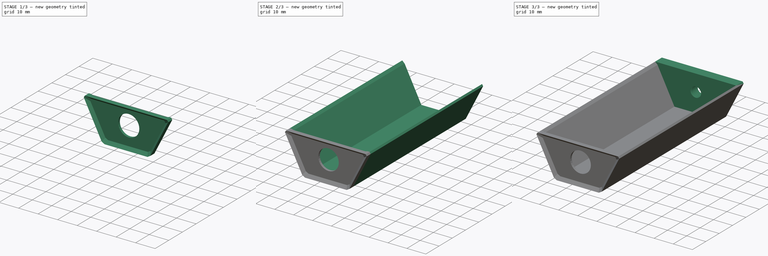
[diagram: build sequence overview — one tinted view per stage of 3, left to right]
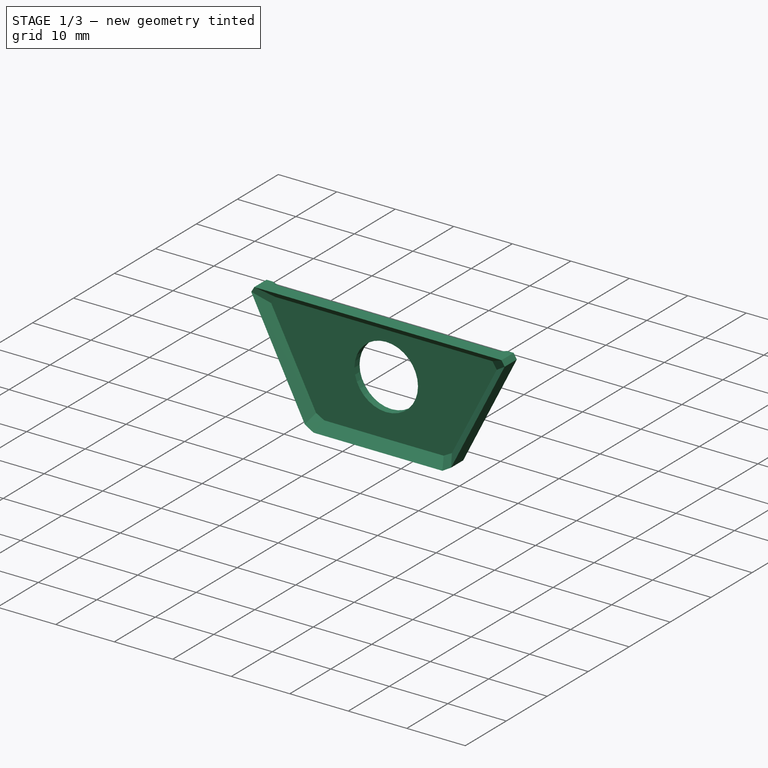
[diagram: stage 1 of 3 — iso view after this stage's code; geometry added in this stage tinted green]
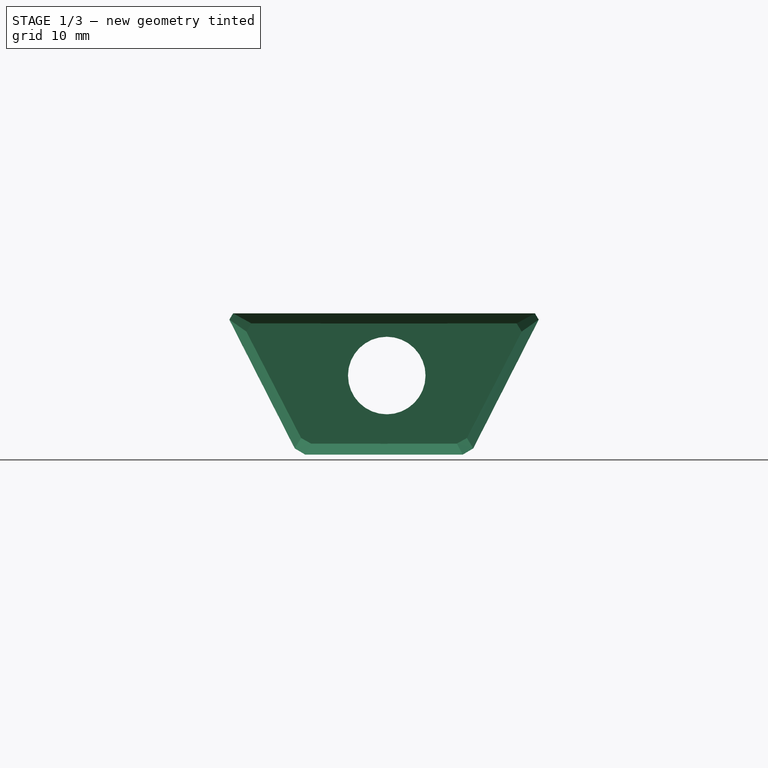
[diagram: stage 1 of 3 — front view after this stage's code; geometry added in this stage tinted green]
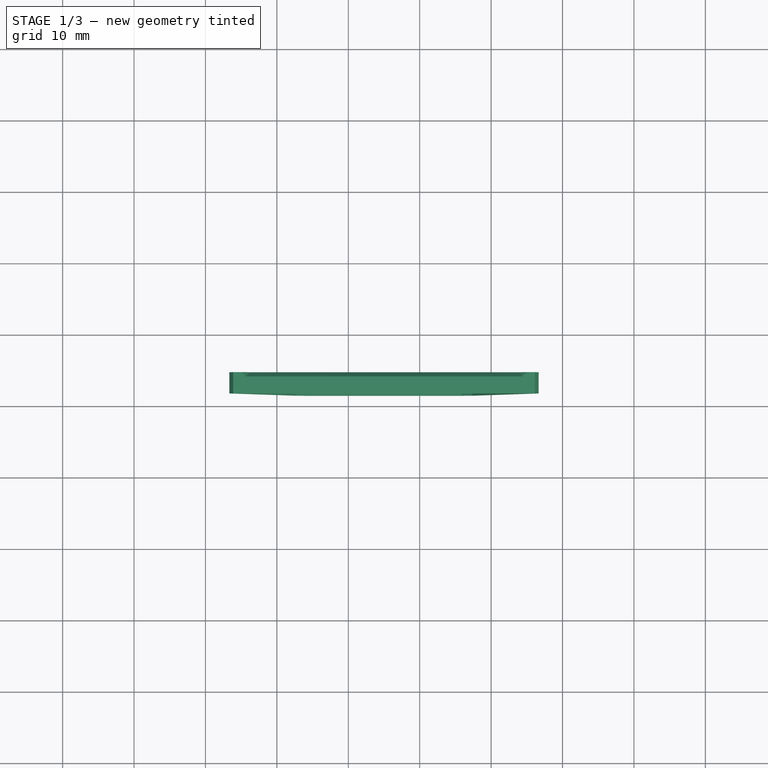
[diagram: stage 1 of 3 — top view after this stage's code; geometry added in this stage tinted green]
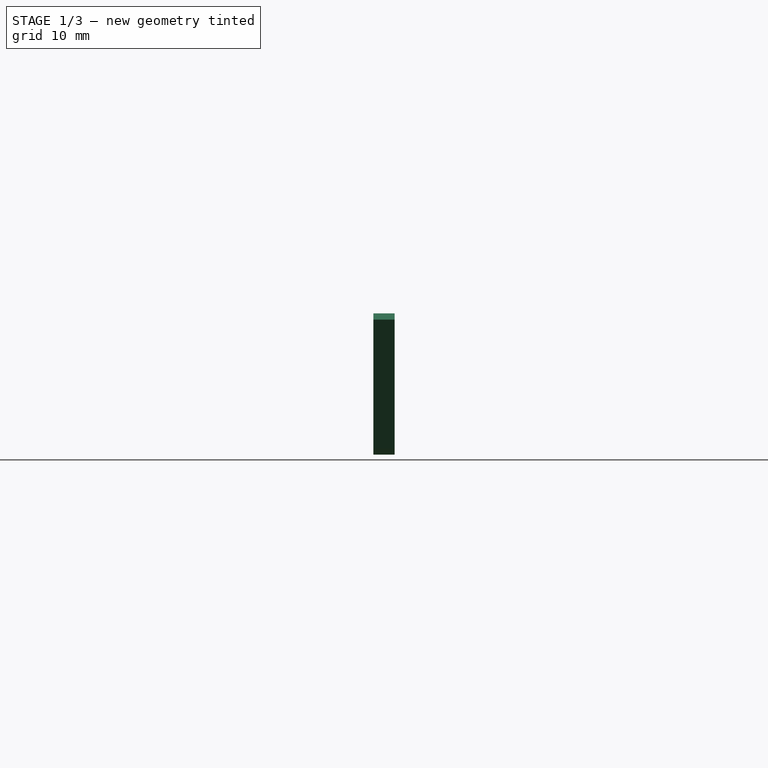
[diagram: stage 1 of 3 — right view after this stage's code; geometry added in this stage tinted green]
FCSTD DOCUMENT  (FreeCAD 1.1R39673 (Git))
Label: tall leg
License: All rights reserved
LicenseURL: https://en.wikipedia.org/wiki/All_rights_reserved
objects: Sketcher::SketchObject×3, PartDesign::Pad×2, Part::Feature×1, App::Point×1, PartDesign::FeatureBase×1, PartDesign::Pocket×1, PartDesign::Hole×1, PartDesign::Body×1
note: 22 computed .brp shape members not serialized (recipe doc carries the construction recipe); baked Part::Feature solids carry a one-line shape summary decoded from their .brp

FEATURE [Part::Feature] LegFixed_x004_solid  label="long leg"
  shape: bbox 43.32 x 82.01 x 19.79 mm, 2493 faces (baked)
FEATURE [App::Point] Origin001
  Role = Origin
FEATURE [PartDesign::FeatureBase] BaseFeature
  BaseFeature = -> LegFixed_x004_solid
  Suppressed = false
FEATURE [Sketcher::SketchObject] Sketch
  ArcFitTolerance = 1e-06
  AttachmentSupport = -> [BaseFeature]
  ExternalTypes = [0]
  FullyConstrained = false
  MakeInternals = false
  MapMode = 5
  Placement = pos=(0,74.4712,0) rot=(0,0.707107,0.707107;3.14159rad)
  sketch-geometry (4):
    g0: LineSegment StartX=-143.991 StartY=27.5216 StartZ=0 EndX=-143.991 EndY=-8.56043 EndZ=0
    g1: LineSegment StartX=-143.991 StartY=-8.56043 StartZ=0 EndX=-82.0082 EndY=-8.56043 EndZ=0
    g2: LineSegment StartX=-82.0082 StartY=-8.56043 StartZ=0 EndX=-82.0082 EndY=27.5216 EndZ=0
    g3: LineSegment StartX=-82.0082 StartY=27.5216 StartZ=0 EndX=-143.991 EndY=27.5216 EndZ=0
  constraints (8):
    c: Coincident(g0,g1)
    c: Coincident(g1,g2)
    c: Coincident(g2,g3)
    c: Coincident(g3,g0)
    c: Vertical(g0)
    c: Vertical(g2)
    c: Horizontal(g1)
    c: Horizontal(g3)
FEATURE [PartDesign::Pocket] Pocket
  BaseFeature = -> BaseFeature
  Direction = (0,-1,0)
  Length = 5
  Length2 = 5
  Profile = -> Sketch
  ReferenceAxis = -> Sketch [N_Axis]
  Refine = true
  Reversed = true
  Suppressed = false
  Type = 1
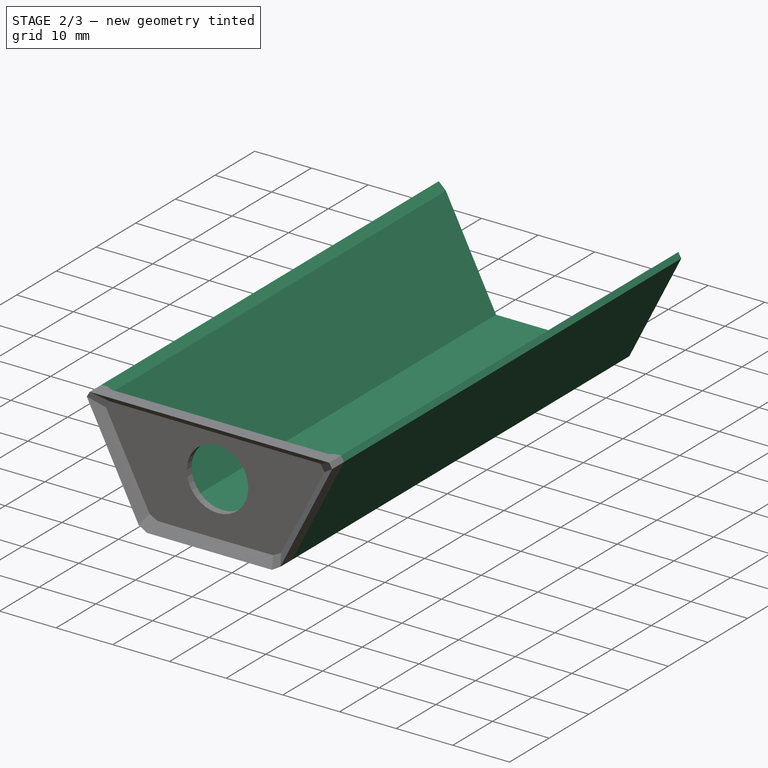
[diagram: stage 2 of 3 — iso view after this stage's code; geometry added in this stage tinted green]
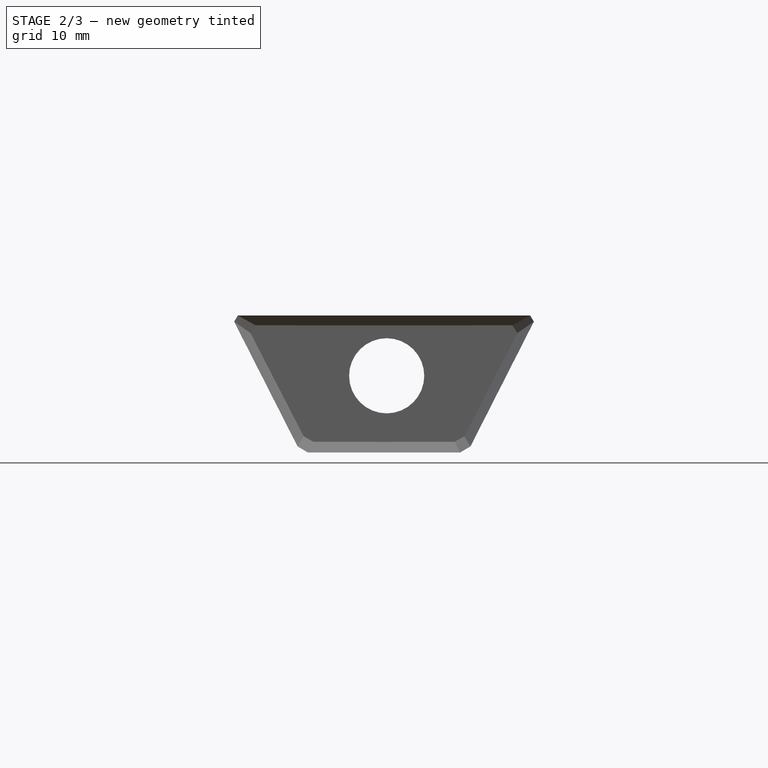
[diagram: stage 2 of 3 — front view after this stage's code; geometry added in this stage tinted green]
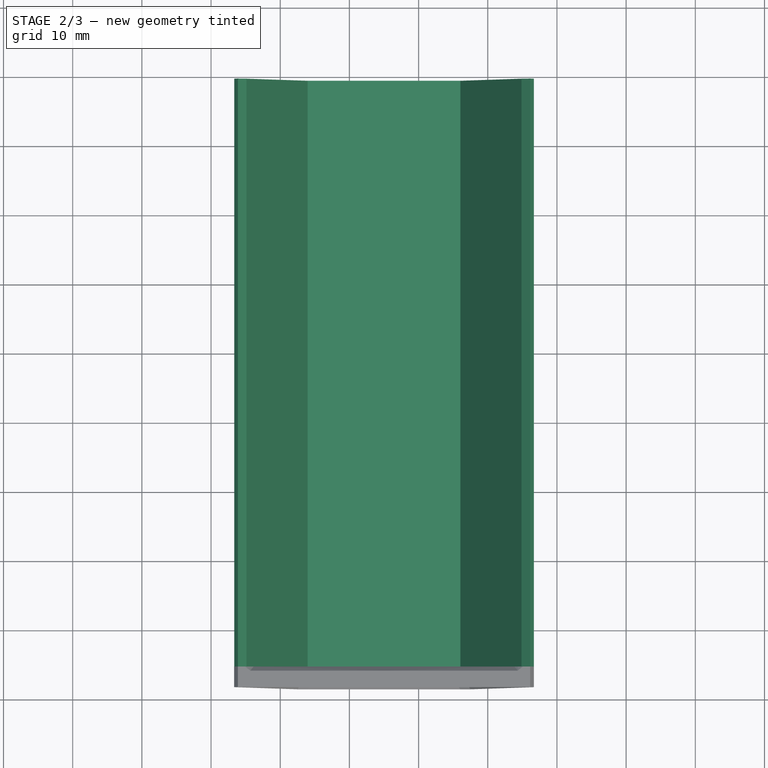
[diagram: stage 2 of 3 — top view after this stage's code; geometry added in this stage tinted green]
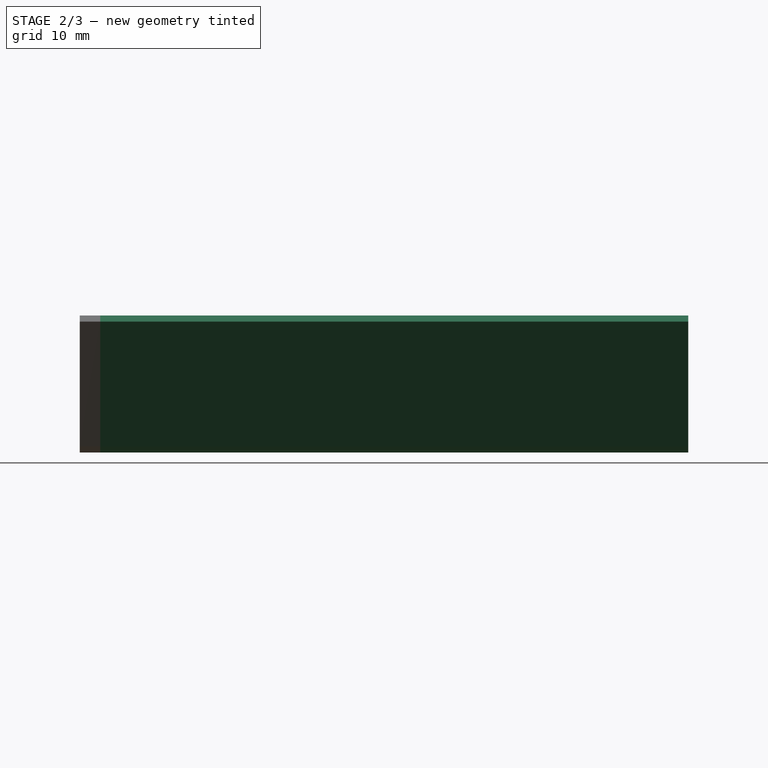
[diagram: stage 2 of 3 — right view after this stage's code; geometry added in this stage tinted green]
FEATURE [Sketcher::SketchObject] Sketch001
  ArcFitTolerance = 1e-06
  AttachmentSupport = -> [Pocket]
  ExternalGeometry = -> [Pocket]
  ExternalTypes = [0]
  FullyConstrained = false
  MakeInternals = false
  MapMode = 5
  Placement = pos=(0,74.4712,4.01e-14) rot=(0,0.707107,0.707107;3.14159rad)
  sketch-geometry (14):
    g0: LineSegment StartX=-93.8694 StartY=19.7936 StartZ=0 EndX=-93.3457 EndY=18.8989 EndZ=0
    g1: LineSegment StartX=-93.3457 StartY=18.8989 StartZ=0 EndX=-102.504 EndY=0.876794 EndZ=0
    g2: LineSegment StartX=-102.504 StartY=0.876794 StartZ=0 EndX=-103.984 EndY=0.000332642 EndZ=0
    g3: LineSegment StartX=-103.984 StartY=0.000332642 StartZ=0 EndX=-126.015 EndY=0.000332642 EndZ=0
    g4: LineSegment StartX=-126.015 StartY=0.000332642 StartZ=0 EndX=-127.496 EndY=0.876794 EndZ=0
    g5: LineSegment StartX=-127.496 StartY=0.876794 StartZ=0 EndX=-136.661 EndY=18.9116 EndZ=0
    g6: LineSegment StartX=-136.661 StartY=18.9116 StartZ=0 EndX=-136.131 EndY=19.7936 EndZ=0
    g7: LineSegment StartX=-134.871 StartY=18.5936 StartZ=0 EndX=-126.032 EndY=1.20033 EndZ=0
    g8: LineSegment StartX=-126.032 StartY=1.20033 StartZ=0 EndX=-103.968 EndY=1.20033 EndZ=0
    g9: LineSegment StartX=-103.968 StartY=1.20033 StartZ=0 EndX=-95.1291 EndY=18.5936 EndZ=0
    g10: GeomPoint [constr] X=-115 Y=1.20033 Z=0
    g11: GeomPoint [constr] X=-115 Y=18.5936 Z=0
    g12: LineSegment StartX=-136.131 StartY=19.7936 StartZ=0 EndX=-134.871 EndY=18.5936 EndZ=0
    g13: LineSegment StartX=-95.1291 StartY=18.5936 StartZ=0 EndX=-93.8694 EndY=19.7936 EndZ=0
  constraints (26):
    c: Coincident(g0,g-25)
    c: Coincident(g0,g1)
    c: Coincident(g1,g-22)
    c: Coincident(g1,g2)
    c: Coincident(g2,g-20)
    c: Coincident(g2,g3)
    c: Coincident(g3,g-19)
    c: Coincident(g3,g4)
    c: Coincident(g4,g-17)
    c: Coincident(g4,g5)
    c: Coincident(g5,g-13)
    c: Coincident(g5,g6)
    c: Coincident(g7,g8)
    c: Horizontal(g8)
    c: Coincident(g8,g9)
    c: Equal(g9,g7)
    c: Symmetric(g8,g8,g10)
    c: Symmetric(g9,g7,g11)
    c: Vertical(g-6,g11)
    c: Parallel(g1,g9)
    c: DistanceY(g2,g8) = 1.2
    c: DistanceY(g7,g-10) = 1.2
    c: Coincident(g6,g12)
    c: Coincident(g12,g7)
    c: Coincident(g9,g13)
    c: Coincident(g13,g0)
FEATURE [PartDesign::Pad] Pad
  BaseFeature = -> Pocket
  Direction = (0,1,0)
  Length = 85
  Length2 = 10
  Profile = -> Sketch001
  ReferenceAxis = -> Sketch001 [N_Axis]
  Refine = true
  Suppressed = false
  Type = 0
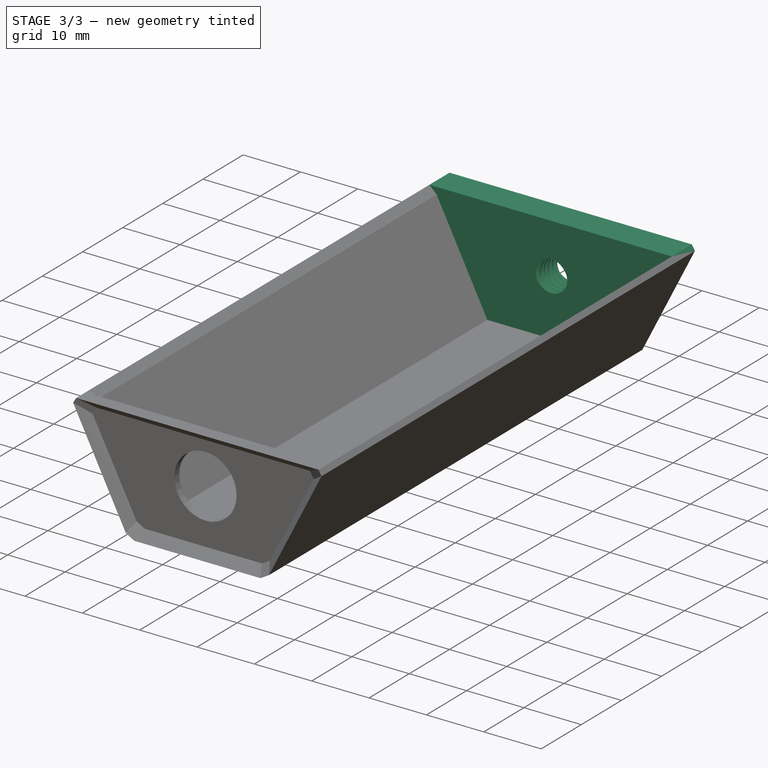
[diagram: stage 3 of 3 — iso view after this stage's code; geometry added in this stage tinted green]
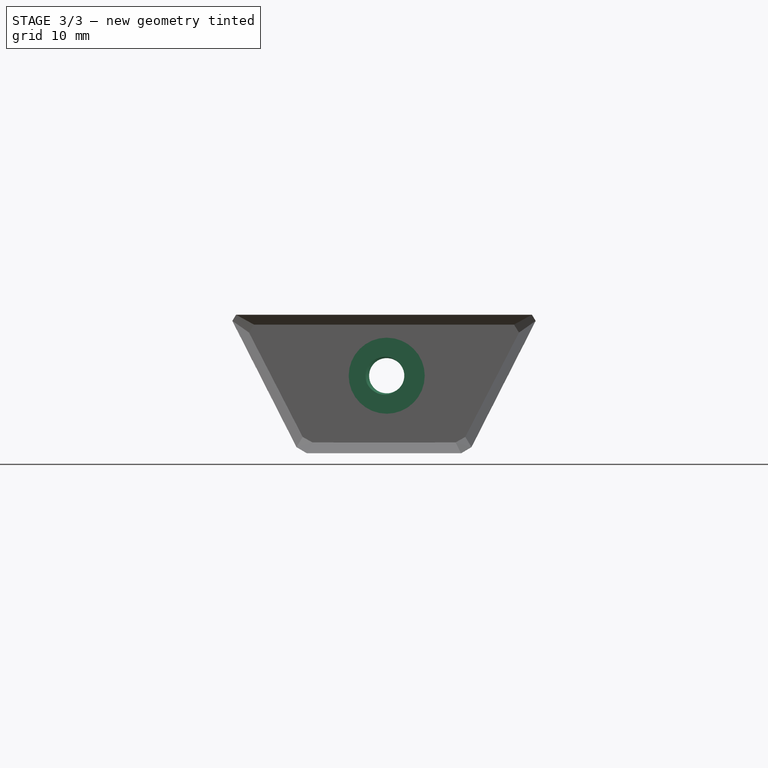
[diagram: stage 3 of 3 — front view after this stage's code; geometry added in this stage tinted green]
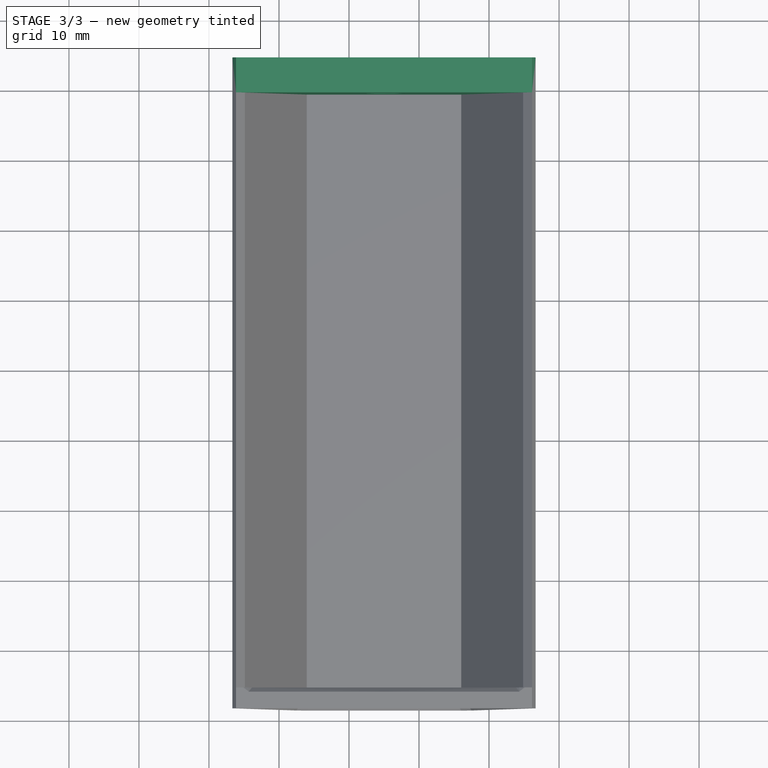
[diagram: stage 3 of 3 — top view after this stage's code; geometry added in this stage tinted green]
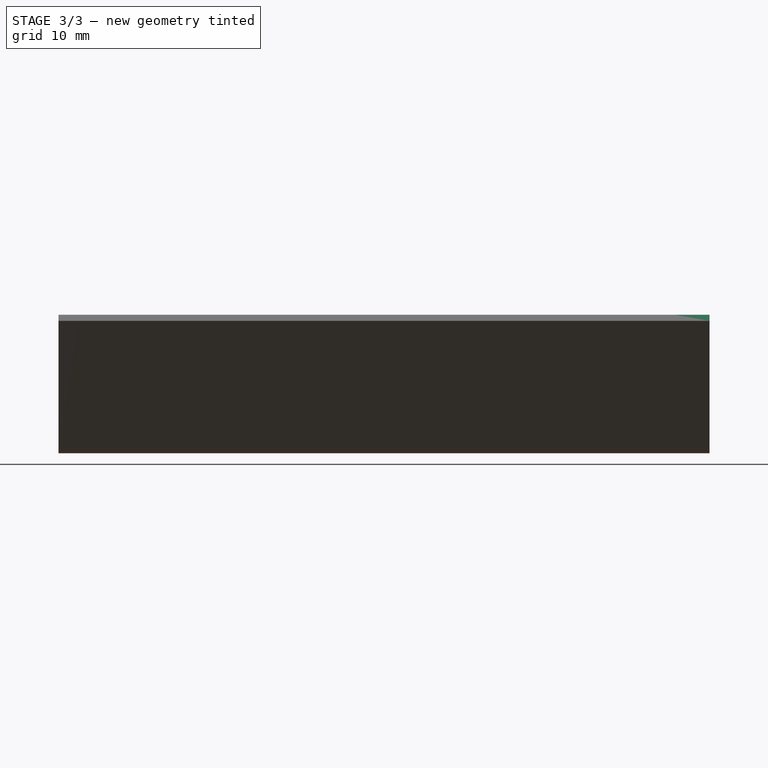
[diagram: stage 3 of 3 — right view after this stage's code; geometry added in this stage tinted green]
FEATURE [Sketcher::SketchObject] Sketch002
  ArcFitTolerance = 1e-06
  AttachmentSupport = -> [Pad]
  ExternalGeometry = -> [Pad]
  ExternalTypes = [0,0,0,0]
  FullyConstrained = false
  MakeInternals = false
  MapMode = 5
  Placement = pos=(0,159.471,0) rot=(0,0.707107,0.707107;3.14159rad)
  sketch-geometry (10):
    g0: LineSegment StartX=-136.661 StartY=18.9116 StartZ=0 EndX=-136.131 EndY=19.7936 EndZ=0
    g1: LineSegment StartX=-136.131 StartY=19.7936 StartZ=0 EndX=-93.8694 EndY=19.7936 EndZ=0
    g2: LineSegment StartX=-93.8694 StartY=19.7936 StartZ=0 EndX=-93.3457 EndY=18.8989 EndZ=0
    g3: LineSegment StartX=-93.3457 StartY=18.8989 StartZ=0 EndX=-102.504 EndY=0.876794 EndZ=0
    g4: LineSegment StartX=-102.504 StartY=0.876794 StartZ=0 EndX=-103.984 EndY=0.000332642 EndZ=0
    g5: LineSegment StartX=-103.984 StartY=0.000332642 StartZ=0 EndX=-126.015 EndY=0.000332642 EndZ=0
    g6: LineSegment StartX=-126.015 StartY=0.000332642 StartZ=0 EndX=-127.496 EndY=0.876794 EndZ=0
    g7: LineSegment StartX=-127.496 StartY=0.876794 StartZ=0 EndX=-136.661 EndY=18.9116 EndZ=0
    g8: Circle [constr] CenterX=-115.387 CenterY=11.0822 CenterZ=0 NormalX=0 NormalY=0 NormalZ=1 AngleXU=0 Radius=5.43218
    g9: Circle CenterX=-115.387 CenterY=11.0822 CenterZ=0 NormalX=0 NormalY=0 NormalZ=1 AngleXU=0 Radius=2
  constraints (13):
    c: Coincident(g0,g1)
    c: Coincident(g1,g2)
    c: Coincident(g2,g3)
    c: Coincident(g3,g4)
    c: Coincident(g4,g5)
    c: Coincident(g5,g6)
    c: Coincident(g6,g7)
    c: Coincident(g7,g0)
    c: PointOnObject(g-5,g8)
    c: PointOnObject(g-4,g8)
    c: PointOnObject(g-3,g8)
    c: Diameter(g9) = 4
    c: Coincident(g9,g8)
FEATURE [PartDesign::Pad] Pad001
  BaseFeature = -> Pad
  Direction = (0,1,0)
  Length = 5
  Length2 = 10
  Profile = -> Sketch002
  ReferenceAxis = -> Sketch002 [N_Axis]
  Refine = true
  Suppressed = false
  Type = 0
FEATURE [PartDesign::Hole] Hole
  BaseFeature = -> Pad001
  CustomThreadClearance = 0
  Depth = 25
  DepthType = 0
  Diameter = 5.026
  DrillForDepth = false
  DrillPoint = 1
  DrillPointAngle = 118
  HoleCutCountersinkAngle = 90
  HoleCutCustomValues = false
  HoleCutDepth = 0
  HoleCutDiameter = 6.1
  HoleCutType = 0
  ModelThread = true
  Profile = -> Pad001 [Edge232]
  Refine = true
  Suppressed = false
  Tapered = false
  TaperedAngle = 90
  ThreadClass = 0
  ThreadDepth = 25
  ThreadDepthType = 0
  ThreadDirection = 0
  ThreadFit = 2
  ThreadSize = 14
  ThreadType = 1
  Threaded = true
  UseCustomThreadClearance = false
FEATURE [PartDesign::Body] Body
  AllowCompound = false
  BaseFeature = -> LegFixed_x004_solid
  Group = -> [BaseFeature,Sketch,Pocket,Sketch001,Pad,Sketch002,Pad001,Hole]
  Origin = -> Origin
  Tip = -> Hole
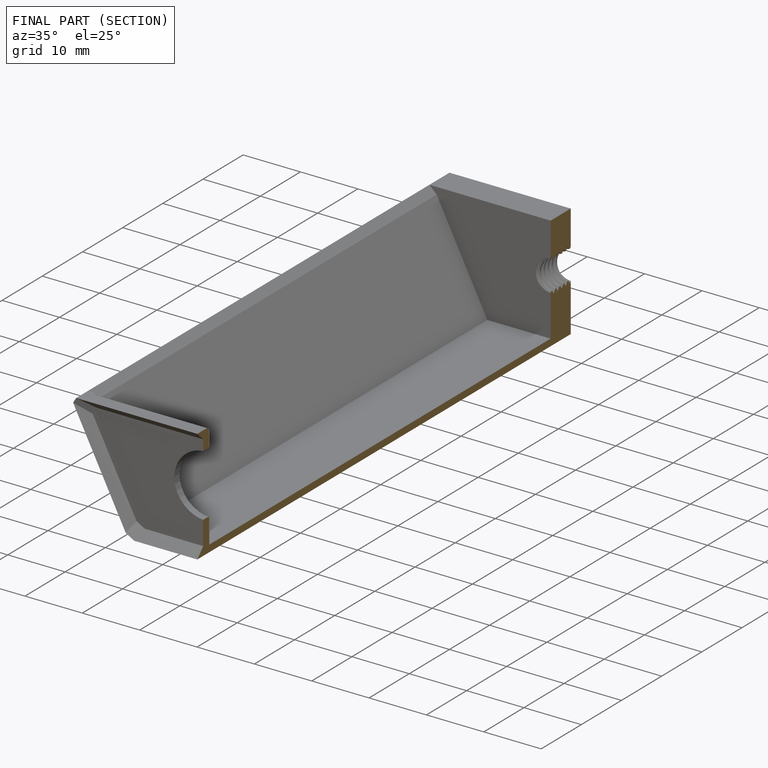
[diagram: finished part — half-section view (interior)]
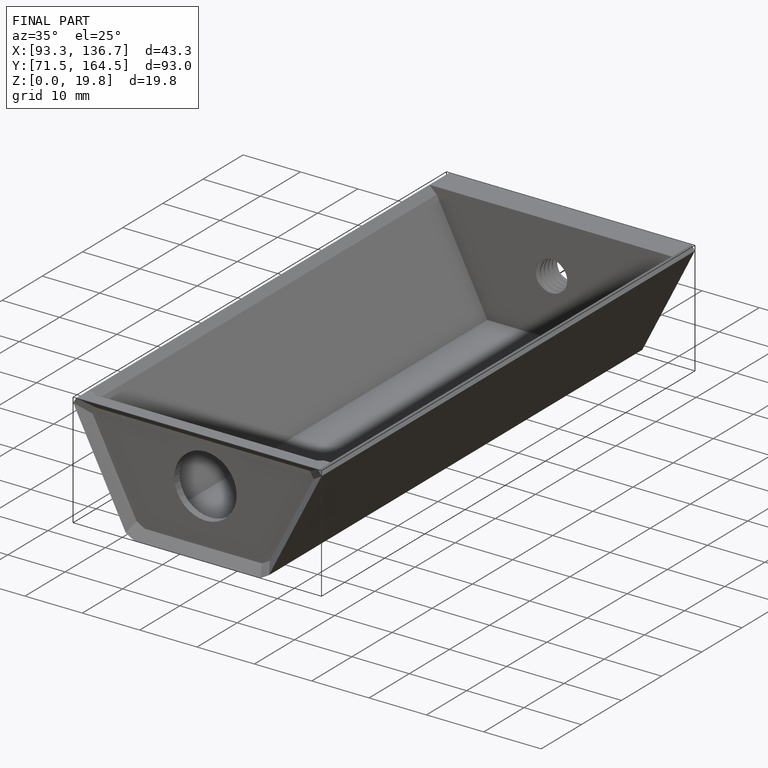
[diagram: finished part — iso view with bounding-box wireframe]
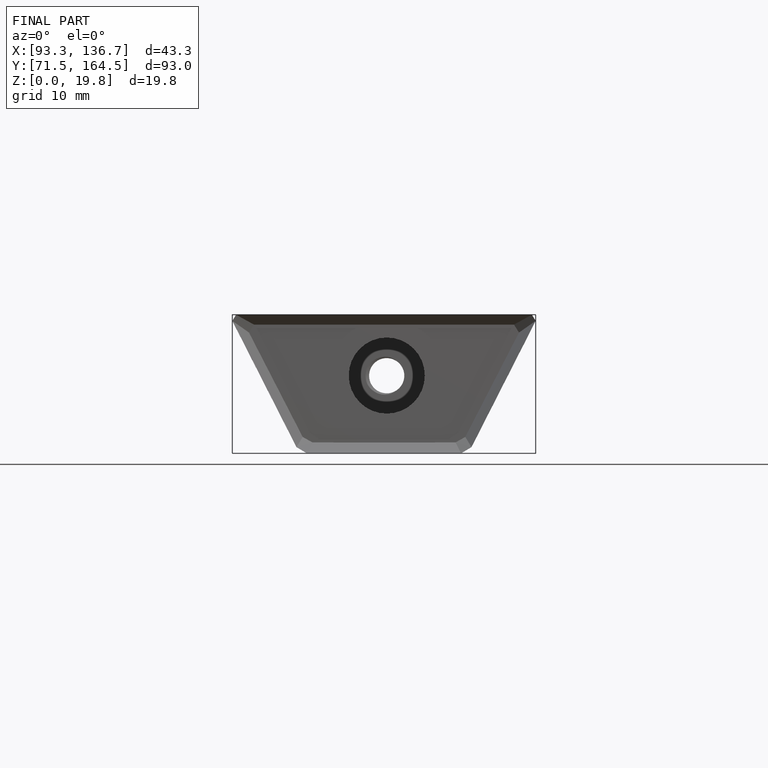
[diagram: finished part — front view with bounding-box wireframe]
